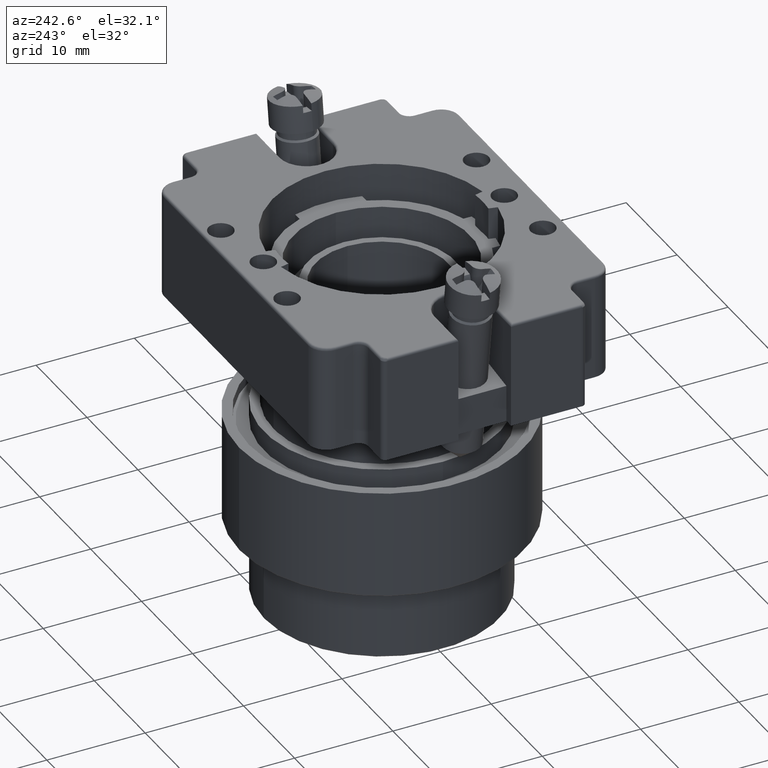
[diagram: clean part render]
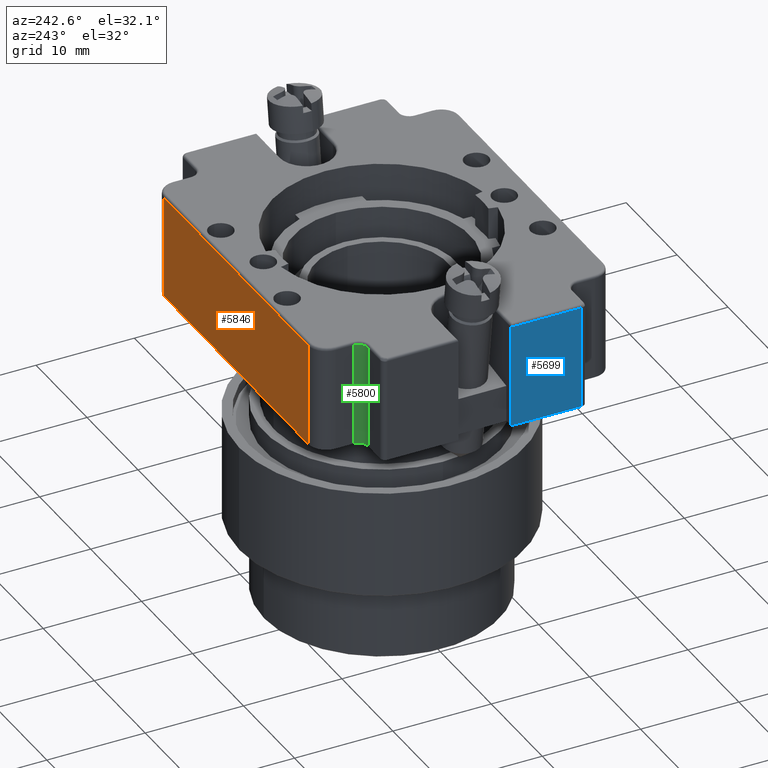
[diagram: same view with three faces highlighted in distinct colors, each labeled with its STEP entity id]
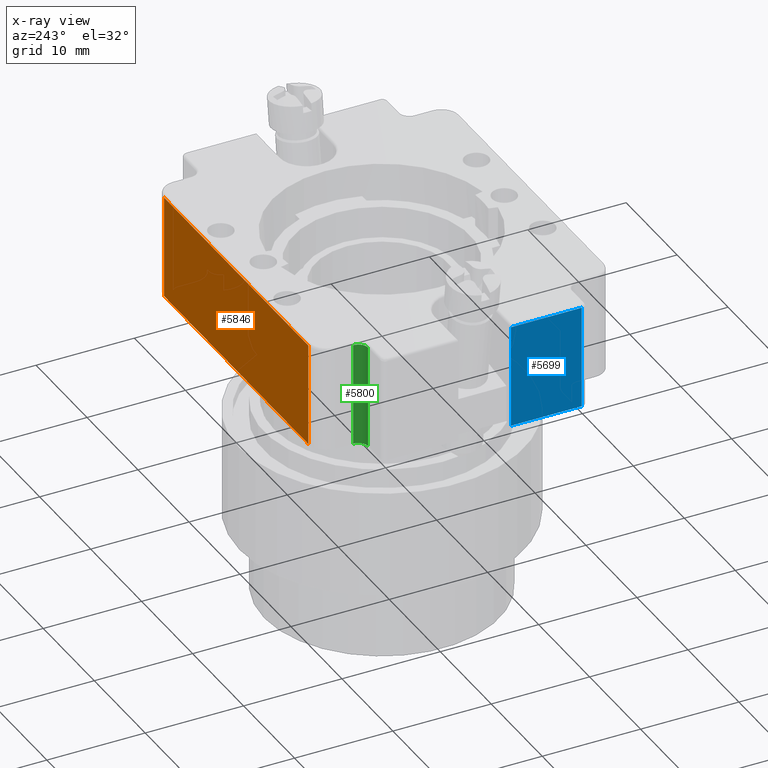
[diagram: x-ray of the same camera — body ghosted, the three highlighted faces saturated]
A machine part, auxiliary view with three faces highlighted in distinct colors.
The next image is the same camera in x-ray (body ghosted, the three faces saturated) — at least one of them is partly hidden behind the body in this view.
Their STEP definitions:

[orange] entity #5846 — the highlighted planar face has unit normal (0, 1, 0).
#1305=CARTESIAN_POINT('',(14.967219691723891,25.142864828157556,10.500000000000000));
#1306=VERTEX_POINT('',#1305);
#1341=CARTESIAN_POINT('',(-13.332780308276099,25.142864828157556,10.500000000000000));
#1342=VERTEX_POINT('',#1341);
#1374=CARTESIAN_POINT('',(14.967219691723891,25.142864828157556,10.500000000000000));
#1375=DIRECTION('',(-1.0,0.0,0.0));
#1376=VECTOR('',#1375,28.299999999999990);
#1377=LINE('',#1374,#1376);
#1378=EDGE_CURVE('',#1306,#1342,#1377,.T.);
#1404=CARTESIAN_POINT('',(14.967219691723891,25.142864828157556,0.0));
#1405=VERTEX_POINT('',#1404);
#1413=CARTESIAN_POINT('',(14.967219691723891,25.142864828157556,0.0));
#1414=DIRECTION('',(0.0,0.0,1.0));
#1415=VECTOR('',#1414,10.500000000000000);
#1416=LINE('',#1413,#1415);
#1417=EDGE_CURVE('',#1405,#1306,#1416,.T.);
#4286=CARTESIAN_POINT('',(-13.332780308276099,25.142864828157556,0.0));
#4287=VERTEX_POINT('',#4286);
#4295=CARTESIAN_POINT('',(14.967219691723891,25.142864828157556,0.0));
#4296=DIRECTION('',(-1.0,0.0,0.0));
#4297=VECTOR('',#4296,28.299999999999990);
#4298=LINE('',#4295,#4297);
#4299=EDGE_CURVE('',#1405,#4287,#4298,.T.);
#5824=CARTESIAN_POINT('',(-13.332780308276099,25.142864828157556,0.0));
#5825=DIRECTION('',(0.0,0.0,1.0));
#5826=VECTOR('',#5825,10.500000000000000);
#5827=LINE('',#5824,#5826);
#5828=EDGE_CURVE('',#4287,#1342,#5827,.T.);
#5835=CARTESIAN_POINT('',(-13.332780308276099,25.142864828157556,0.0));
#5836=DIRECTION('',(0.0,1.0,0.0));
#5837=DIRECTION('',(0.0,0.0,1.0));
#5838=AXIS2_PLACEMENT_3D('',#5835,#5836,#5837);
#5839=PLANE('',#5838);
#5840=ORIENTED_EDGE('',*,*,#1378,.F.);
#5841=ORIENTED_EDGE('',*,*,#1417,.F.);
#5842=ORIENTED_EDGE('',*,*,#4299,.T.);
#5843=ORIENTED_EDGE('',*,*,#5828,.T.);
#5844=EDGE_LOOP('',(#5840,#5841,#5842,#5843));
#5845=FACE_OUTER_BOUND('',#5844,.T.);
#5846=ADVANCED_FACE('',(#5845),#5839,.T.);

[blue] entity #5699 — the highlighted planar face has unit normal (-1, 0, 0).
#673=CARTESIAN_POINT('',(-18.982780308276109,0.267864828157553,10.500000000000000));
#674=VERTEX_POINT('',#673);
#727=CARTESIAN_POINT('',(-18.982780308276109,7.467864828157554,10.500000000000000));
#728=VERTEX_POINT('',#727);
#729=CARTESIAN_POINT('',(-18.982780308276109,7.467864828157554,10.500000000000000));
#730=DIRECTION('',(0.0,-1.0,0.0));
#731=VECTOR('',#730,7.200000000000001);
#732=LINE('',#729,#731);
#733=EDGE_CURVE('',#728,#674,#732,.T.);
#4203=CARTESIAN_POINT('',(-18.982780308276109,0.267864828157553,0.0));
#4204=VERTEX_POINT('',#4203);
#4212=CARTESIAN_POINT('',(-18.982780308276109,7.467864828157554,0.0));
#4213=VERTEX_POINT('',#4212);
#4214=CARTESIAN_POINT('',(-18.982780308276109,7.467864828157554,0.0));
#4215=DIRECTION('',(0.0,-1.0,0.0));
#4216=VECTOR('',#4215,7.200000000000001);
#4217=LINE('',#4214,#4216);
#4218=EDGE_CURVE('',#4213,#4204,#4217,.T.);
#5672=CARTESIAN_POINT('',(-18.982780308276109,0.267864828157553,0.0));
#5673=DIRECTION('',(0.0,0.0,1.0));
#5674=VECTOR('',#5673,10.500000000000000);
#5675=LINE('',#5672,#5674);
#5676=EDGE_CURVE('',#4204,#674,#5675,.T.);
#5683=CARTESIAN_POINT('',(-18.982780308276109,0.267864828157553,0.0));
#5684=DIRECTION('',(-1.0,0.0,0.0));
#5685=DIRECTION('',(0.0,0.0,1.0));
#5686=AXIS2_PLACEMENT_3D('',#5683,#5684,#5685);
#5687=PLANE('',#5686);
#5688=ORIENTED_EDGE('',*,*,#733,.F.);
#5689=CARTESIAN_POINT('',(-18.982780308276109,7.467864828157554,0.0));
#5690=DIRECTION('',(0.0,0.0,1.0));
#5691=VECTOR('',#5690,10.500000000000000);
#5692=LINE('',#5689,#5691);
#5693=EDGE_CURVE('',#4213,#728,#5692,.T.);
#5694=ORIENTED_EDGE('',*,*,#5693,.F.);
#5695=ORIENTED_EDGE('',*,*,#4218,.T.);
#5696=ORIENTED_EDGE('',*,*,#5676,.T.);
#5697=EDGE_LOOP('',(#5688,#5694,#5695,#5696));
#5698=FACE_OUTER_BOUND('',#5697,.T.);
#5699=ADVANCED_FACE('',(#5698),#5687,.T.);

[green] entity #5800 — the highlighted cylindrical surface (edge-blend (fillet) strip) has radius 1 mm, axis along (0, 0, 1).
#1143=CARTESIAN_POINT('',(-16.132780308276100,20.517864828157556,10.500000000000000));
#1144=VERTEX_POINT('',#1143);
#1209=CARTESIAN_POINT('',(-15.132780308276100,21.517864828157556,10.500000000000000));
#1210=VERTEX_POINT('',#1209);
#1218=CARTESIAN_POINT('',(-16.132780308276100,21.517864828157556,10.500000000000000));
#1219=DIRECTION('',(0.0,0.0,-1.000000000000000));
#1220=DIRECTION('',(0.707106781186549,-0.707106781186546,0.0));
#1221=AXIS2_PLACEMENT_3D('',#1218,#1219,#1220);
#1222=CIRCLE('',#1221,1.000000000000001);
#1223=EDGE_CURVE('',#1210,#1144,#1222,.T.);
#4261=CARTESIAN_POINT('',(-16.132780308276100,20.517864828157556,0.0));
#4262=VERTEX_POINT('',#4261);
#4269=CARTESIAN_POINT('',(-15.132780308276100,21.517864828157556,0.0));
#4270=VERTEX_POINT('',#4269);
#4271=CARTESIAN_POINT('',(-16.132780308276100,21.517864828157556,0.0));
#4272=DIRECTION('',(0.0,0.0,-1.0));
#4273=DIRECTION('',(0.0,1.0,0.0));
#4274=AXIS2_PLACEMENT_3D('',#4271,#4272,#4273);
#4275=CIRCLE('',#4274,1.000000000000001);
#4276=EDGE_CURVE('',#4270,#4262,#4275,.T.);
#5773=CARTESIAN_POINT('',(-16.132780308276100,20.517864828157556,0.0));
#5774=DIRECTION('',(0.0,0.0,1.0));
#5775=VECTOR('',#5774,10.500000000000000);
#5776=LINE('',#5773,#5775);
#5777=EDGE_CURVE('',#4262,#1144,#5776,.T.);
#5784=CARTESIAN_POINT('',(-16.132780308276100,21.517864828157556,0.0));
#5785=DIRECTION('',(0.0,0.0,1.0));
#5786=DIRECTION('',(0.0,1.0,0.0));
#5787=AXIS2_PLACEMENT_3D('',#5784,#5785,#5786);
#5788=CYLINDRICAL_SURFACE('',#5787,1.000000000000001);
#5789=ORIENTED_EDGE('',*,*,#1223,.F.);
#5790=CARTESIAN_POINT('',(-15.132780308276100,21.517864828157556,0.0));
#5791=DIRECTION('',(0.0,0.0,1.0));
#5792=VECTOR('',#5791,10.500000000000000);
#5793=LINE('',#5790,#5792);
#5794=EDGE_CURVE('',#4270,#1210,#5793,.T.);
#5795=ORIENTED_EDGE('',*,*,#5794,.F.);
#5796=ORIENTED_EDGE('',*,*,#4276,.T.);
#5797=ORIENTED_EDGE('',*,*,#5777,.T.);
#5798=EDGE_LOOP('',(#5789,#5795,#5796,#5797));
#5799=FACE_OUTER_BOUND('',#5798,.T.);
#5800=ADVANCED_FACE('',(#5799),#5788,.F.);